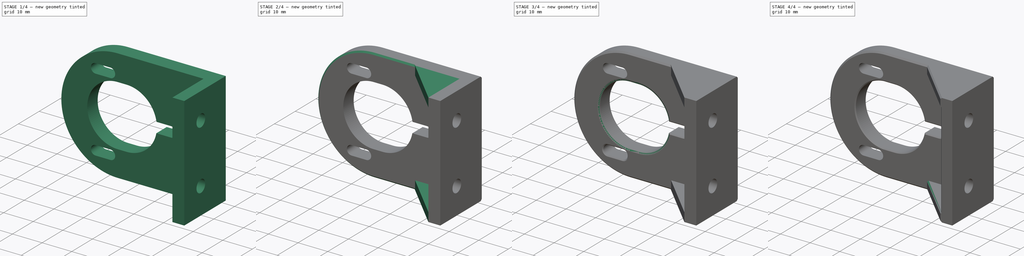
[diagram: build sequence overview — one tinted view per stage of 4, left to right]
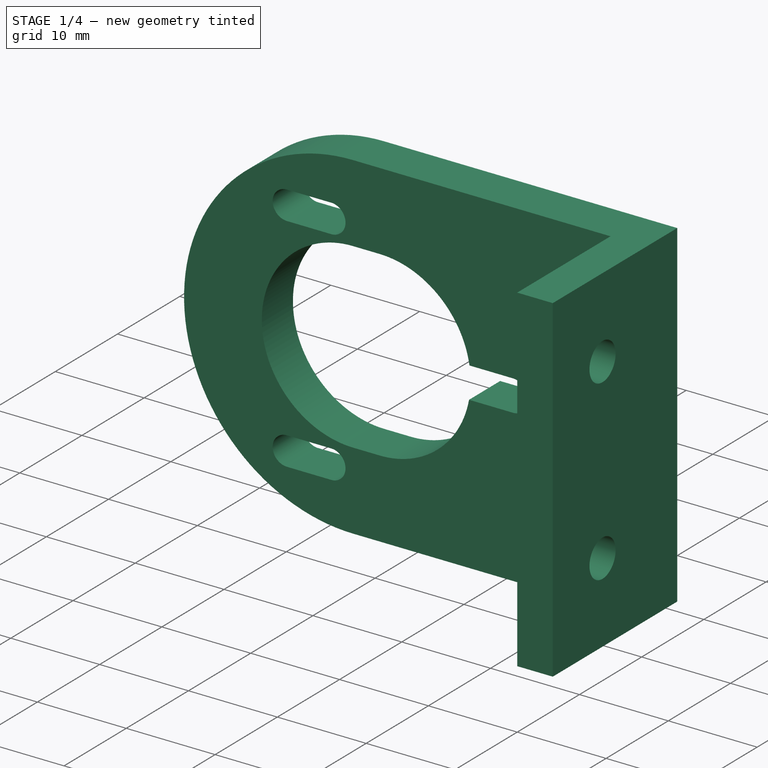
[diagram: stage 1 of 4 — iso view after this stage's code; geometry added in this stage tinted green]
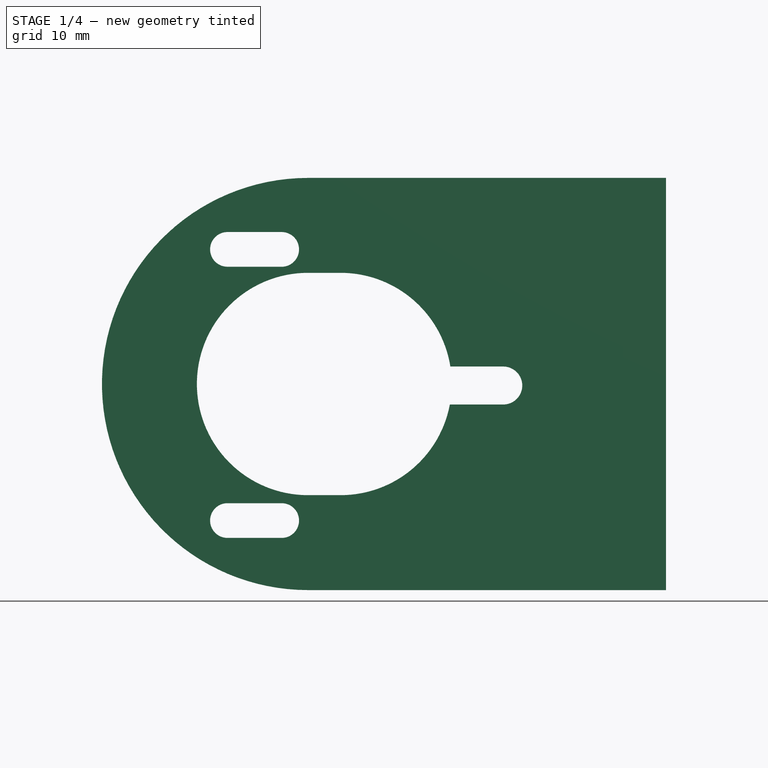
[diagram: stage 1 of 4 — front view after this stage's code; geometry added in this stage tinted green]
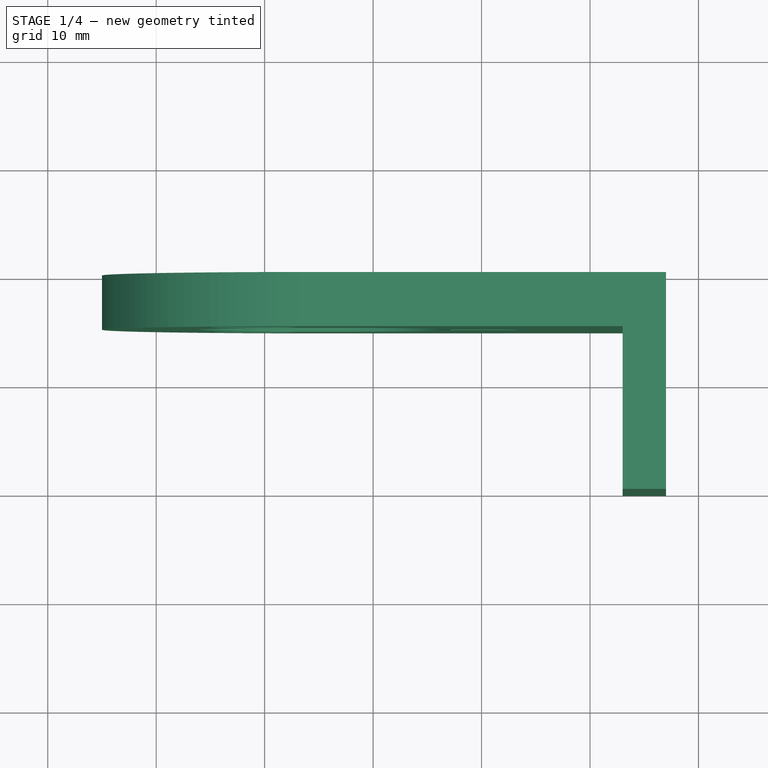
[diagram: stage 1 of 4 — top view after this stage's code; geometry added in this stage tinted green]
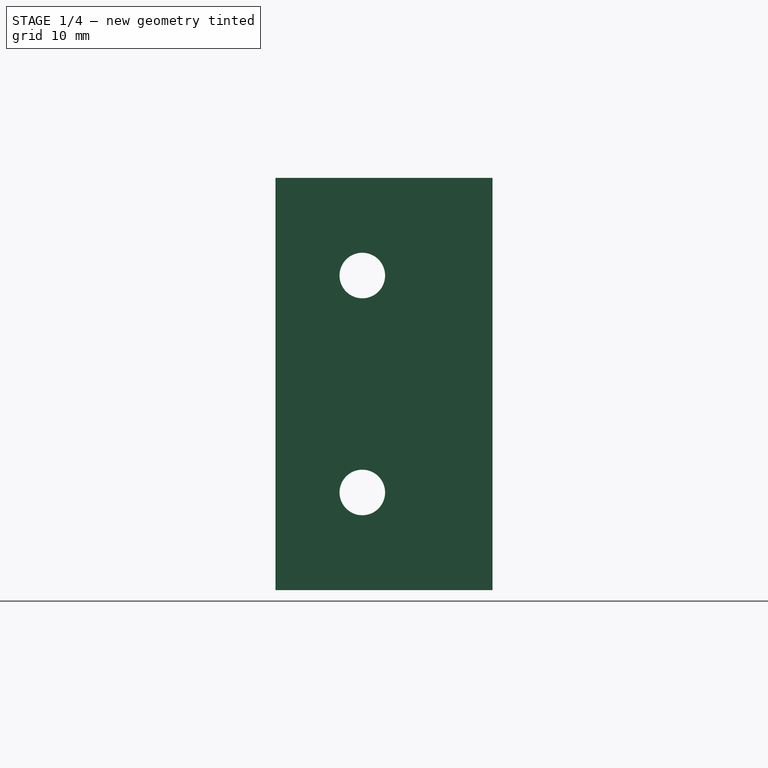
[diagram: stage 1 of 4 — right view after this stage's code; geometry added in this stage tinted green]
FCSTD DOCUMENT  (FreeCAD 0.21R33668 +26 (Git))
Label: Roll_Encoder_Mount
License: All rights reserved
LicenseURL: http://en.wikipedia.org/wiki/All_rights_reserved
objects: PartDesign::Chamfer×6, Sketcher::SketchObject×5, PartDesign::Pad×4, PartDesign::Pocket×1, PartDesign::Body×1
note: 28 computed .brp shape members not serialized (recipe doc carries the construction recipe); baked Part::Feature solids carry a one-line shape summary decoded from their .brp

FEATURE [Sketcher::SketchObject] Sketch124
  AttachmentOffset = pos=(1,-14,-75) rot=(0,0,1;0rad)
  FullyConstrained = true
  MapMode = 5
  Placement = pos=(1,75,-14) rot=(1,0,0;1.5708rad)
  Support = -> [XZ_Plane043]
  sketch-geometry (23):
    g0: LineSegment StartX=33 StartY=31 StartZ=0 EndX=66 EndY=31 EndZ=0
    g1: LineSegment StartX=66 StartY=31 StartZ=0 EndX=66 EndY=-7 EndZ=0
    g2: LineSegment StartX=66 StartY=-7 StartZ=0 EndX=33 EndY=-7 EndZ=0
    g3: ArcOfCircle CenterX=33 CenterY=12 CenterZ=0 NormalX=0 NormalY=0 NormalZ=1 AngleXU=0 Radius=19 StartAngle=1.5708 EndAngle=4.71239
    g4: LineSegment StartX=33 StartY=22.25 StartZ=0 EndX=36 EndY=22.25 EndZ=0
    g5: LineSegment StartX=36 StartY=1.75 StartZ=0 EndX=33 EndY=1.75 EndZ=0
    g6: ArcOfCircle CenterX=51 CenterY=11.86 CenterZ=0 NormalX=0 NormalY=0 NormalZ=1 AngleXU=0 Radius=1.75 StartAngle=4.71239 EndAngle=7.85398
    g7: LineSegment StartX=51 StartY=10.11 StartZ=0 EndX=46.0742 EndY=10.11 EndZ=0
    g8: LineSegment StartX=51 StartY=13.61 StartZ=0 EndX=46.1228 EndY=13.61 EndZ=0
    g9: ArcOfCircle CenterX=33 CenterY=12 CenterZ=0 NormalX=0 NormalY=0 NormalZ=1 AngleXU=0 Radius=10.25 StartAngle=1.5708 EndAngle=4.71239
    g10: ArcOfCircle CenterX=36 CenterY=12 CenterZ=0 NormalX=0 NormalY=0 NormalZ=1 AngleXU=0 Radius=10.25 StartAngle=4.71239 EndAngle=6.09773
    g11: ArcOfCircle CenterX=36 CenterY=12 CenterZ=0 NormalX=0 NormalY=0 NormalZ=1 AngleXU=0 Radius=10.25 StartAngle=0.157726 EndAngle=1.5708
    g12: ArcOfCircle CenterX=25.57 CenterY=24.41 CenterZ=0 NormalX=0 NormalY=0 NormalZ=1 AngleXU=0 Radius=1.6 StartAngle=1.5708 EndAngle=4.71239
    g13: ArcOfCircle CenterX=30.57 CenterY=24.41 CenterZ=0 NormalX=0 NormalY=0 NormalZ=1 AngleXU=0 Radius=1.6 StartAngle=4.71239 EndAngle=7.85398
    g14: ArcOfCircle CenterX=25.57 CenterY=-0.59 CenterZ=0 NormalX=0 NormalY=0 NormalZ=1 AngleXU=0 Radius=1.6 StartAngle=1.5708 EndAngle=4.71239
    g15: ArcOfCircle CenterX=30.57 CenterY=-0.59 CenterZ=0 NormalX=0 NormalY=0 NormalZ=1 AngleXU=0 Radius=1.6 StartAngle=4.71239 EndAngle=7.85398
    g16: LineSegment StartX=25.57 StartY=1.01 StartZ=0 EndX=30.57 EndY=1.01 EndZ=0
    g17: LineSegment StartX=25.57 StartY=-2.19 StartZ=0 EndX=30.57 EndY=-2.19 EndZ=0
    g18: LineSegment StartX=25.57 StartY=26.01 StartZ=0 EndX=30.57 EndY=26.01 EndZ=0
    g19: LineSegment StartX=25.57 StartY=22.81 StartZ=0 EndX=30.57 EndY=22.81 EndZ=0
    g20: GeomPoint X=33 Y=12 Z=0
    g21: GeomPoint X=33 Y=12 Z=0
    g22: GeomPoint X=33 Y=12 Z=0
  constraints (65):
    c: Coincident(g0,g1)
    c: Vertical(g1)
    c: Coincident(g1,g2)
    c: Coincident(g3,g2)
    c: Coincident(g3,g0)
    c: Horizontal(g2)
    c: Horizontal(g0)
    c: DistanceY(g1,g1) = 38
    c: DistanceX(g0) = 66
    c: Horizontal(g4)
    c: Horizontal(g5)
    c: DistanceY(g3) = 12
    c: Vertical(g5,g4)
    c: DistanceX(g3) = 33
    c: Vertical(g0,g3)
    c: Equal(g0,g2)
    c: Diameter(g6) = 3.5
    c: DistanceX(g6,g0) = 15
    c: DistanceY(g6,g0) = 19.14
    c: Horizontal(g7)
    c: Horizontal(g8)
    c: Tangent(g6,g7) = 1.5708
    c: Tangent(g6,g8) = -1.5708
    c: Coincident(g9,g3)
    c: Coincident(g9,g5)
    c: Coincident(g11,g4)
    c: Coincident(g10,g5)
    c: Symmetric(g4,g5,g10)
    c: Coincident(g10,g7)
    c: Coincident(g11,g8)
    c: DistanceX(g3,g10) = 3
    c: Coincident(g10,g11)
    c: Diameter(g9) = 20.5
    c: Coincident(g9,g4)
    c: Vertical(g4,g5)
    c: DistanceX(g12) = 25.57
    c: Horizontal(g12,g13)
    c: Horizontal(g14,g15)
    c: Vertical(g12,g14)
    c: Equal(g12,g13)
    c: Diameter(g12) = 3.2
    c: Equal(g14,g15)
    c: Diameter(g14) = 3.2
    c: DistanceX(g12,g13) = 5
    c: Vertical(g13,g15)
    c: DistanceY(g14,g12) = 25
    c: Tangent(g15,g16) = 1.5708
    c: Tangent(g15,g17) = -1.5708
    c: Coincident(g14,g17)
    c: Coincident(g14,g16)
    c: Vertical(g14,g14)
    c: Coincident(g13,g18)
    c: Coincident(g13,g19)
    c: Coincident(g12,g19)
    c: Coincident(g12,g18)
    c: Vertical(g12,g12)
    c: Vertical(g13,g13)
    c: Coincident(g20,g3)
    c: Coincident(g21,g3)
    c: Coincident(g22,g3)
    c: DistanceY(g12) = 24.41
    c: Vertical(g4,g3)
    c: Vertical(g13,g13)
    c: Vertical(g12,g12)
    c: Vertical(g14,g14)
FEATURE [PartDesign::Pad] Pad068
  Direction = (0,-1,-2e-16)
  Length = 5
  Length2 = 10
  Placement = pos=(0,0,0) rot=(1,0,0;1.5708rad)
  Profile = -> Sketch124
  ReferenceAxis = -> Sketch124 [N_Axis]
  Reversed = true
  Type = 0
FEATURE [Sketcher::SketchObject] Sketch125
  AttachmentOffset = pos=(0,0,67) rot=(0,0,1;0rad)
  FullyConstrained = true
  MapMode = 5
  Placement = pos=(67,-1.49e-14,1.49e-14) rot=(0.57735,0.57735,0.57735;2.0944rad)
  Support = -> [YZ_Plane042]
  sketch-geometry (4):
    g0: LineSegment StartX=80 StartY=17 StartZ=0 EndX=60 EndY=17 EndZ=0
    g1: LineSegment StartX=60 StartY=17 StartZ=0 EndX=60 EndY=-21 EndZ=0
    g2: LineSegment StartX=60 StartY=-21 StartZ=0 EndX=80 EndY=-21 EndZ=0
    g3: LineSegment StartX=80 StartY=-21 StartZ=0 EndX=80 EndY=17 EndZ=0
  constraints (12):
    c: Coincident(g0,g1)
    c: Coincident(g1,g2)
    c: Coincident(g2,g3)
    c: Coincident(g3,g0)
    c: Horizontal(g0)
    c: Horizontal(g2)
    c: Vertical(g1)
    c: Vertical(g3)
    c: DistanceX(g0) = 80
    c: Distance(g3) = 38
    c: DistanceY(g0) = 17
    c: Distance(g0) = 20
FEATURE [PartDesign::Pad] Pad069
  BaseFeature = -> Pad068
  Direction = (1,-2e-16,3e-16)
  Length = 4
  Length2 = 10
  Placement = pos=(0,0,0) rot=(1,0,0;1.5708rad)
  Profile = -> Sketch125
  ReferenceAxis = -> Sketch125 [N_Axis]
  Reversed = true
  Type = 0
FEATURE [Sketcher::SketchObject] Sketch
  AttachmentOffset = pos=(0,0,67) rot=(0,0,1;0rad)
  FullyConstrained = true
  MapMode = 5
  Placement = pos=(67,-1.49e-14,1.49e-14) rot=(0.57735,0.57735,0.57735;2.0944rad)
  Support = -> [YZ_Plane042]
  sketch-geometry (2):
    g0: Circle CenterX=68 CenterY=8 CenterZ=0 NormalX=0 NormalY=0 NormalZ=1 AngleXU=0 Radius=2.1
    g1: Circle CenterX=68 CenterY=-12 CenterZ=0 NormalX=0 NormalY=0 NormalZ=1 AngleXU=0 Radius=2.1
  constraints (6):
    c: Equal(g0,g1)
    c: Diameter(g0) = 4.2
    c: Vertical(g1,g0)
    c: Distance(g1,g0) = 20
    c: DistanceY(g0) = 8
    c: DistanceX(g0) = 68
FEATURE [PartDesign::Pocket] Pocket
  BaseFeature = -> Pad069
  Direction = (-1,2e-16,-3e-16)
  Length = 5
  Length2 = 5
  Placement = pos=(0,0,0) rot=(1,0,0;1.5708rad)
  Profile = -> Sketch
  ReferenceAxis = -> Sketch [N_Axis]
  Type = 1
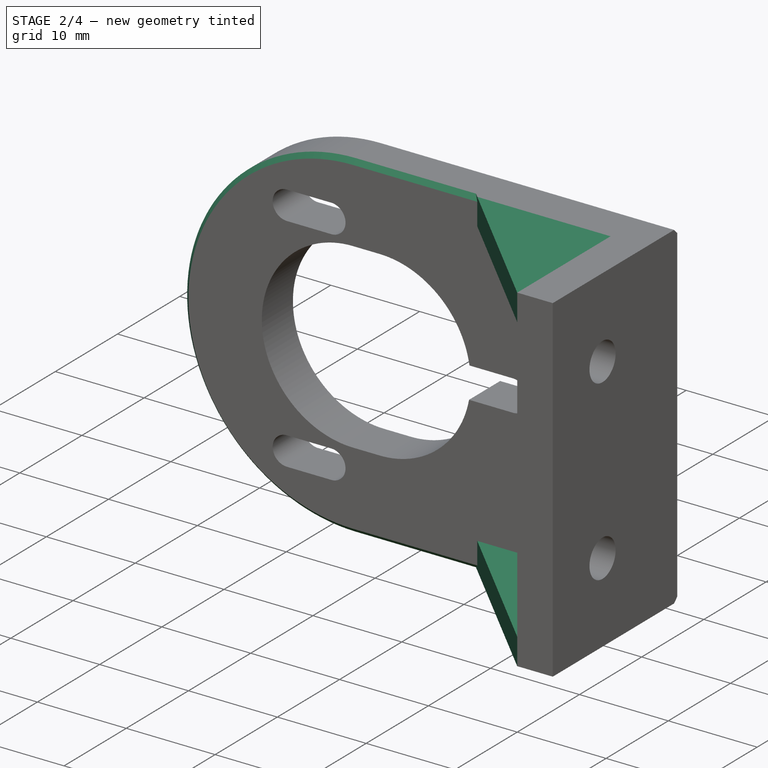
[diagram: stage 2 of 4 — iso view after this stage's code; geometry added in this stage tinted green]
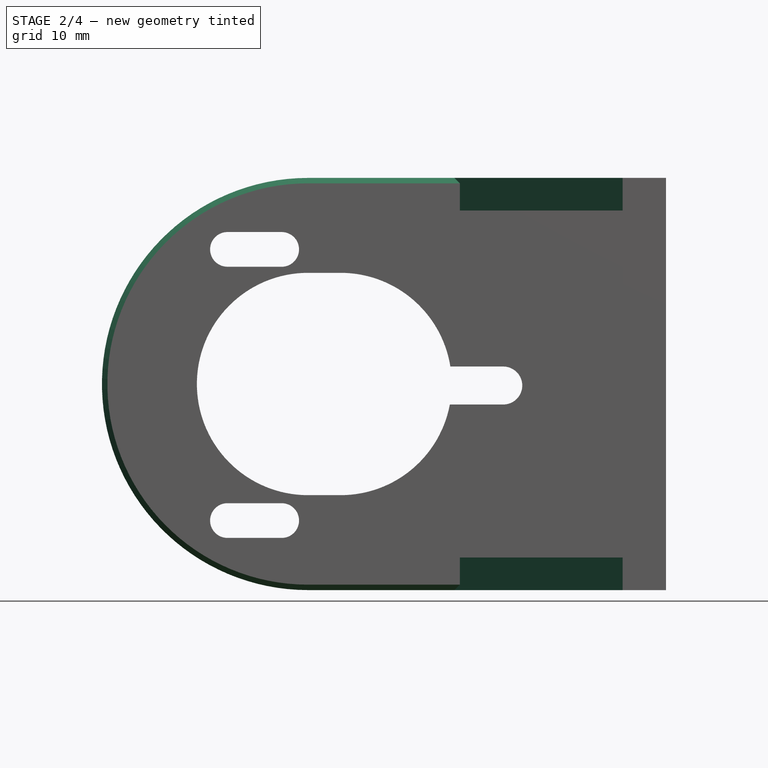
[diagram: stage 2 of 4 — front view after this stage's code; geometry added in this stage tinted green]
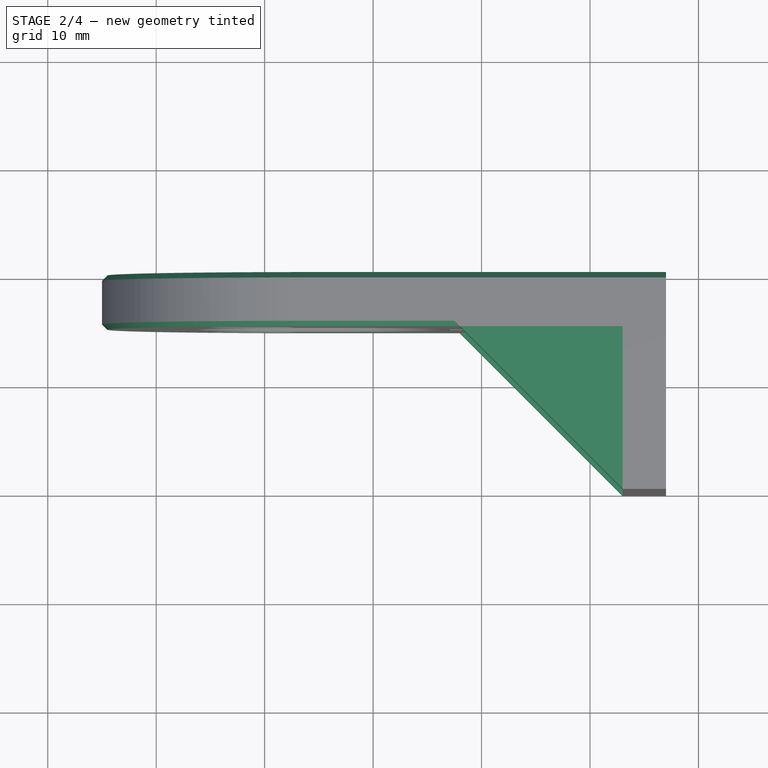
[diagram: stage 2 of 4 — top view after this stage's code; geometry added in this stage tinted green]
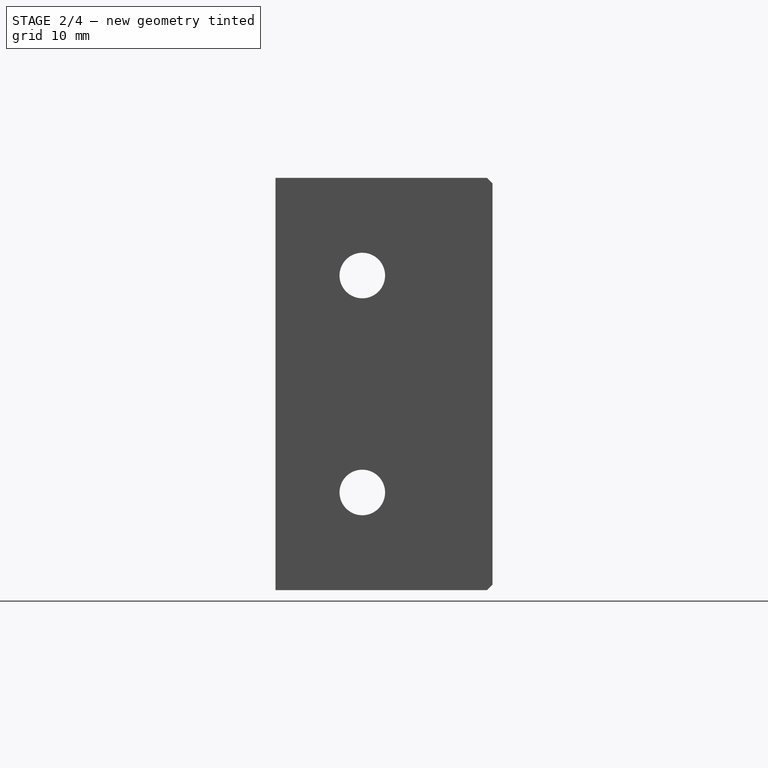
[diagram: stage 2 of 4 — right view after this stage's code; geometry added in this stage tinted green]
FEATURE [Sketcher::SketchObject] Sketch126
  AttachmentOffset = pos=(0,0,-21) rot=(0,0,1;0rad)
  FullyConstrained = true
  MapMode = 5
  Placement = pos=(0,0,-21) rot=(0,0,1;0rad)
  Support = -> [XY_Plane042]
  sketch-geometry (3):
    g0: LineSegment StartX=63 StartY=60 StartZ=0 EndX=63 EndY=75 EndZ=0
    g1: LineSegment StartX=63 StartY=75 StartZ=0 EndX=48 EndY=75 EndZ=0
    g2: LineSegment StartX=48 StartY=75 StartZ=0 EndX=63 EndY=60 EndZ=0
  constraints (9):
    c: Vertical(g0)
    c: Coincident(g0,g1)
    c: Horizontal(g1)
    c: Coincident(g1,g2)
    c: Coincident(g2,g0)
    c: Equal(g1,g0)
    c: Distance(g0) = 15
    c: DistanceY(g0) = 75
    c: DistanceX(g0) = 63
FEATURE [PartDesign::Pad] Pad
  BaseFeature = -> Pocket
  Direction = (0,0,1)
  Length = 3
  Length2 = 10
  Placement = pos=(0,0,0) rot=(1,0,0;1.5708rad)
  Profile = -> Sketch126
  ReferenceAxis = -> Sketch126 [N_Axis]
  Type = 0
FEATURE [Sketcher::SketchObject] Sketch127
  AttachmentOffset = pos=(0,0,17) rot=(0,0,1;0rad)
  FullyConstrained = true
  MapMode = 5
  Placement = pos=(0,0,17) rot=(0,0,1;0rad)
  Support = -> [XY_Plane042]
  sketch-geometry (3):
    g0: LineSegment StartX=63 StartY=60 StartZ=0 EndX=63 EndY=75 EndZ=0
    g1: LineSegment StartX=63 StartY=75 StartZ=0 EndX=48 EndY=75 EndZ=0
    g2: LineSegment StartX=48 StartY=75 StartZ=0 EndX=63 EndY=60 EndZ=0
  constraints (9):
    c: Vertical(g0)
    c: Coincident(g0,g1)
    c: Horizontal(g1)
    c: Coincident(g1,g2)
    c: Coincident(g2,g0)
    c: Equal(g1,g0)
    c: Distance(g0) = 15
    c: DistanceY(g0) = 75
    c: DistanceX(g0) = 63
FEATURE [PartDesign::Pad] Pad070
  BaseFeature = -> Pad
  Direction = (0,0,1)
  Length = 3
  Length2 = 10
  Placement = pos=(0,0,0) rot=(1,0,0;1.5708rad)
  Profile = -> Sketch127
  ReferenceAxis = -> Sketch127 [N_Axis]
  Reversed = true
  Type = 0
FEATURE [PartDesign::Chamfer] Chamfer
  Angle = 45
  Base = -> Pad070 [Face6]
  BaseFeature = -> Pad070
  ChamferType = 0
  FlipDirection = false
  Placement = pos=(0,0,0) rot=(1,0,0;1.5708rad)
  Size = 0.5
  Size2 = 1
  SupportTransform = false
  UseAllEdges = false
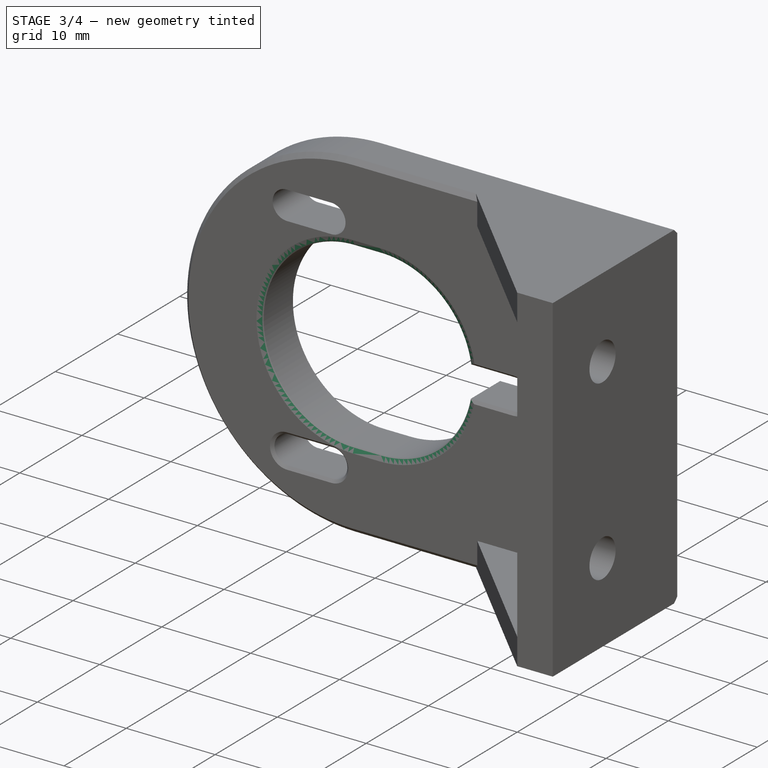
[diagram: stage 3 of 4 — iso view after this stage's code; geometry added in this stage tinted green]
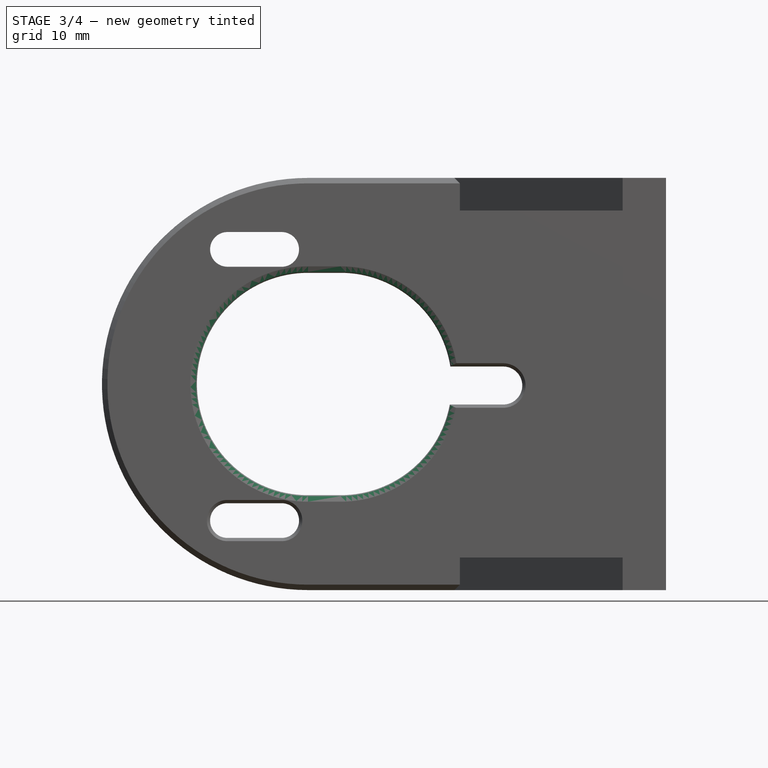
[diagram: stage 3 of 4 — front view after this stage's code; geometry added in this stage tinted green]
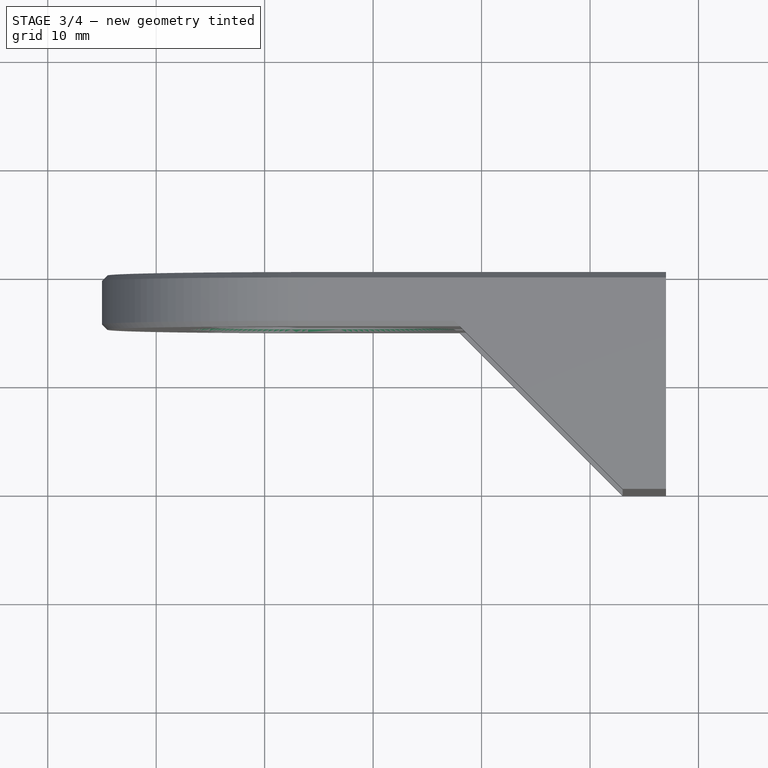
[diagram: stage 3 of 4 — top view after this stage's code; geometry added in this stage tinted green]
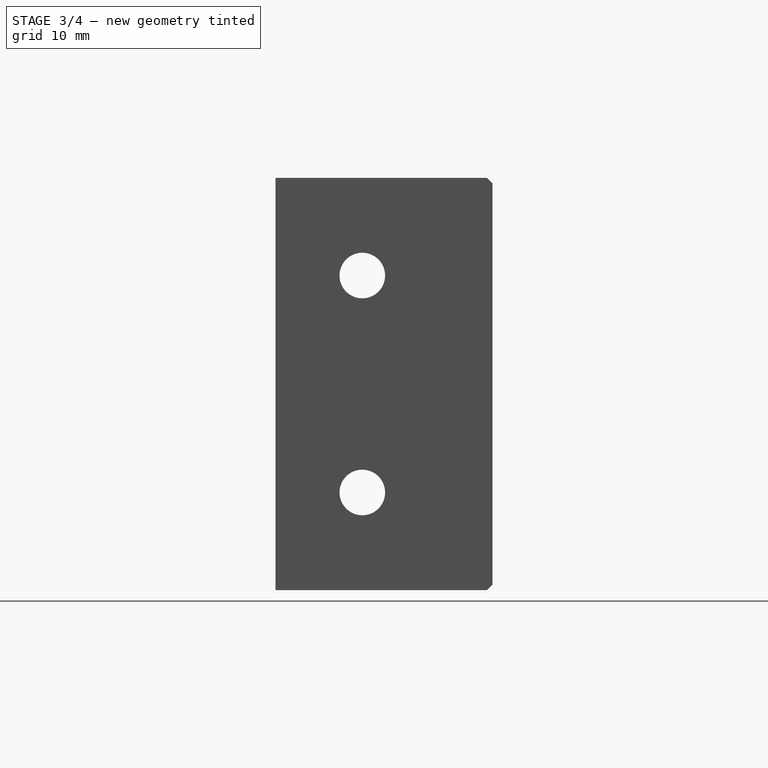
[diagram: stage 3 of 4 — right view after this stage's code; geometry added in this stage tinted green]
FEATURE [PartDesign::Chamfer] Chamfer001
  Angle = 45
  Base = -> Chamfer [Edge73,Edge72,Edge79,Edge78,Edge77]
  BaseFeature = -> Chamfer
  ChamferType = 0
  FlipDirection = false
  Placement = pos=(0,0,0) rot=(1,0,0;1.5708rad)
  Size = 0.3
  Size2 = 1
  SupportTransform = false
  UseAllEdges = false
FEATURE [PartDesign::Chamfer] Chamfer002
  Angle = 45
  Base = -> Chamfer001 [Edge5,Edge3,Edge1]
  BaseFeature = -> Chamfer001
  ChamferType = 0
  FlipDirection = false
  Placement = pos=(0,0,0) rot=(1,0,0;1.5708rad)
  Size = 0.3
  Size2 = 1
  SupportTransform = false
  UseAllEdges = false
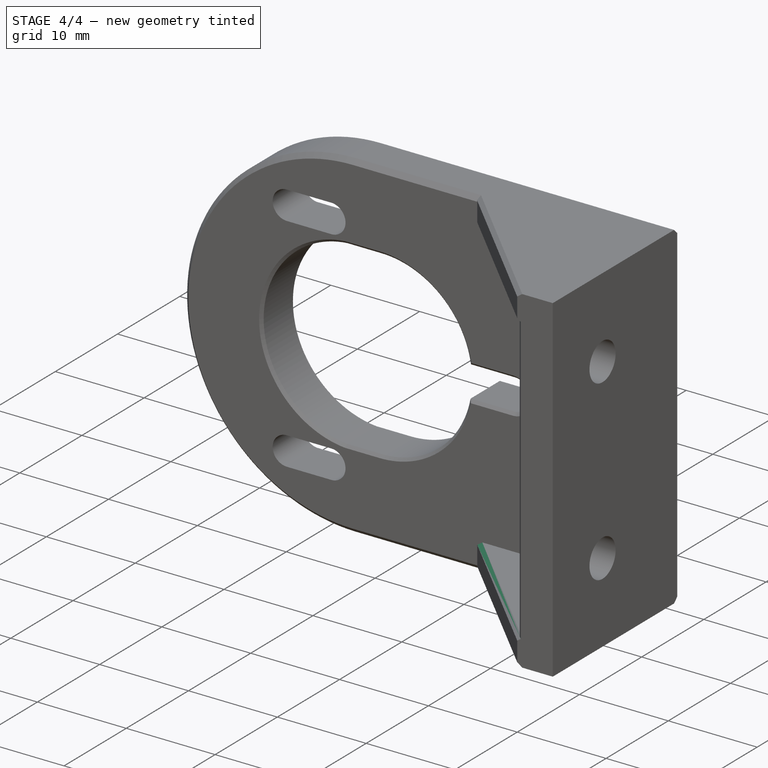
[diagram: stage 4 of 4 — iso view after this stage's code; geometry added in this stage tinted green]
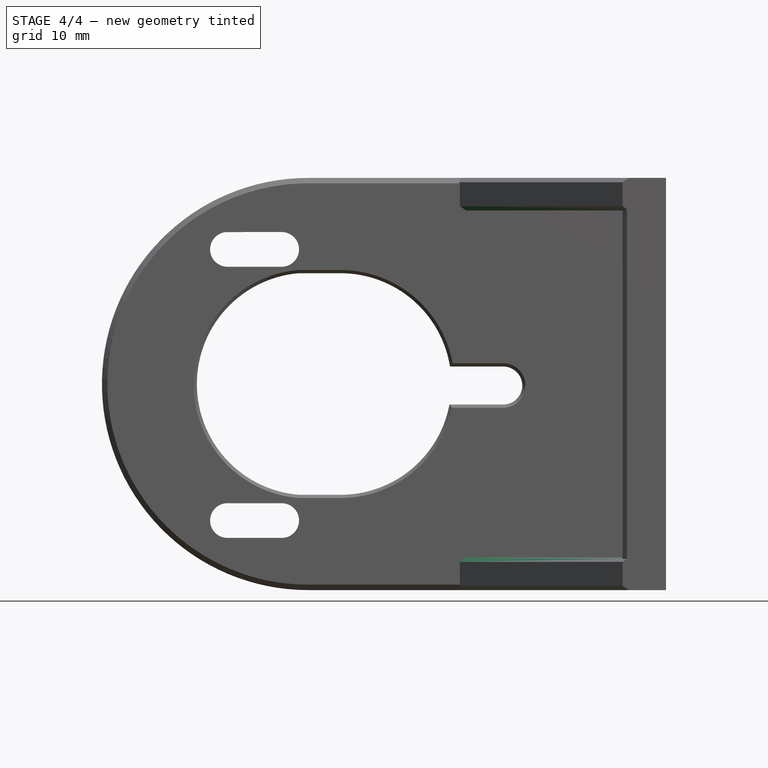
[diagram: stage 4 of 4 — front view after this stage's code; geometry added in this stage tinted green]
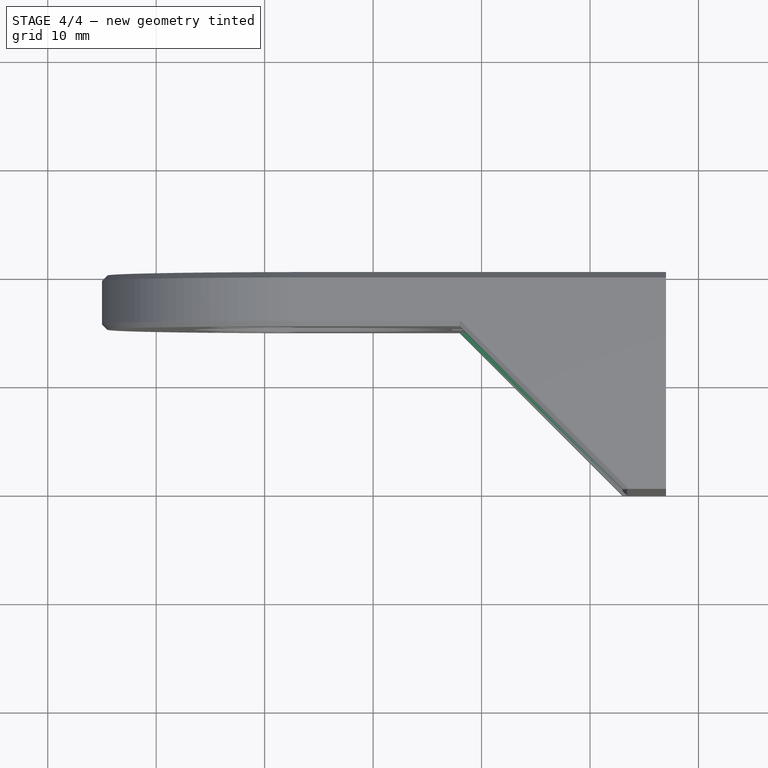
[diagram: stage 4 of 4 — top view after this stage's code; geometry added in this stage tinted green]
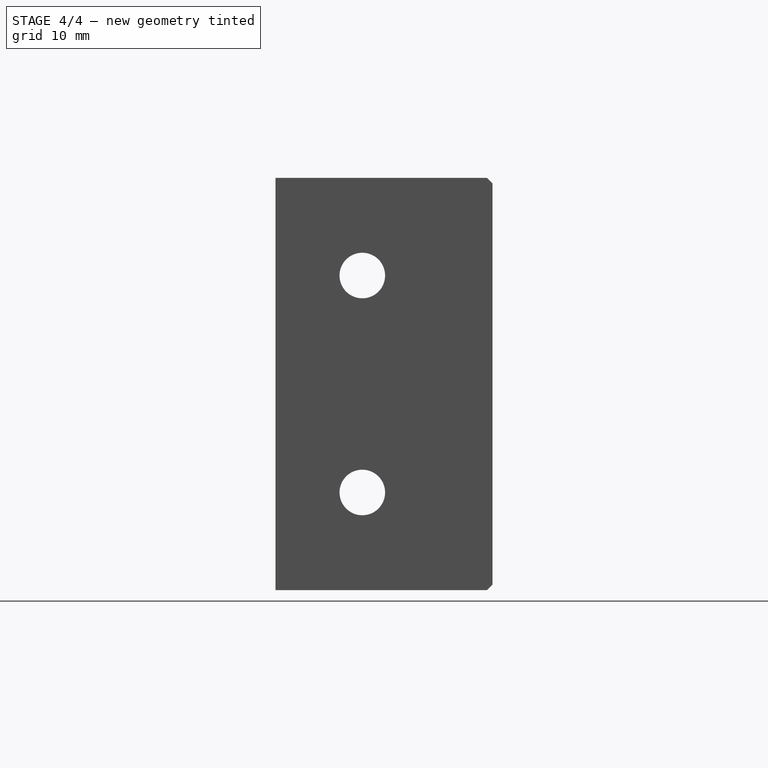
[diagram: stage 4 of 4 — right view after this stage's code; geometry added in this stage tinted green]
FEATURE [PartDesign::Chamfer] Chamfer003
  Angle = 45
  Base = -> Chamfer002 [Edge54,Edge52]
  BaseFeature = -> Chamfer002
  ChamferType = 0
  FlipDirection = false
  Placement = pos=(0,0,0) rot=(1,0,0;1.5708rad)
  Size = 0.4
  Size2 = 1
  SupportTransform = false
  UseAllEdges = false
FEATURE [PartDesign::Chamfer] Chamfer004
  Angle = 45
  Base = -> Chamfer003 [Edge48,Edge50]
  BaseFeature = -> Chamfer003
  ChamferType = 0
  FlipDirection = false
  Placement = pos=(0,0,0) rot=(1,0,0;1.5708rad)
  Size = 0.4
  Size2 = 1
  SupportTransform = false
  UseAllEdges = false
FEATURE [PartDesign::Chamfer] Chamfer005
  Angle = 45
  Base = -> Chamfer004 [Edge33]
  BaseFeature = -> Chamfer004
  ChamferType = 0
  FlipDirection = false
  Placement = pos=(0,0,0) rot=(1,0,0;1.5708rad)
  Size = 0.4
  Size2 = 1
  SupportTransform = false
  UseAllEdges = false
FEATURE [PartDesign::Body] Body026  label="Roll Encoder Mount"
  Group = -> [Sketch124,Pad068,Sketch125,Pad069,Sketch,Pocket,Sketch126,Pad,Sketch127,Pad070,Chamfer,Chamfer001,Chamfer002,Chamfer003,Chamfer004,Chamfer005]
  Origin = -> Origin042
  Placement = pos=(0,2,0) rot=(0,0,1;0rad)
  Tip = -> Chamfer005
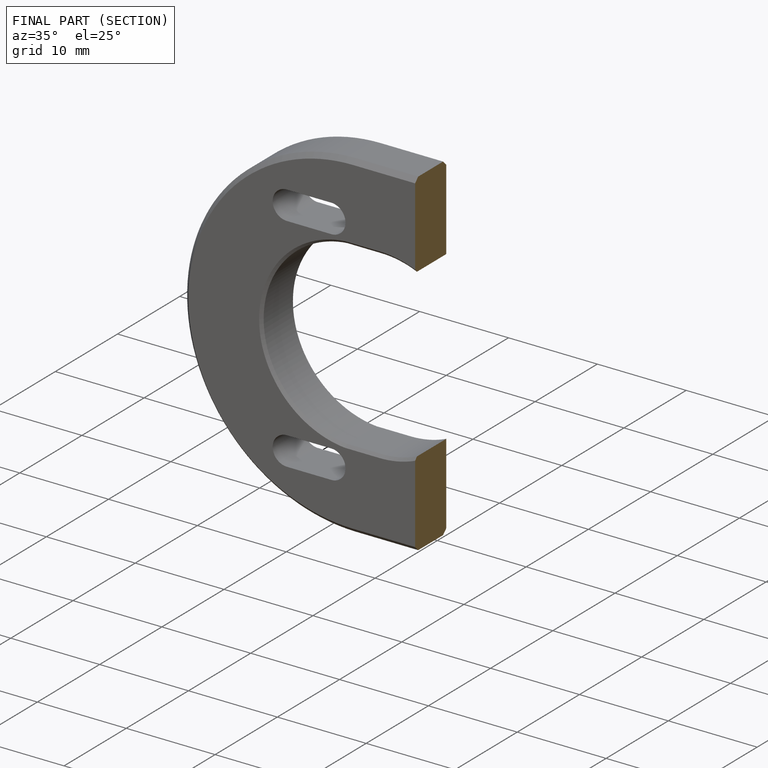
[diagram: finished part — half-section view (interior)]
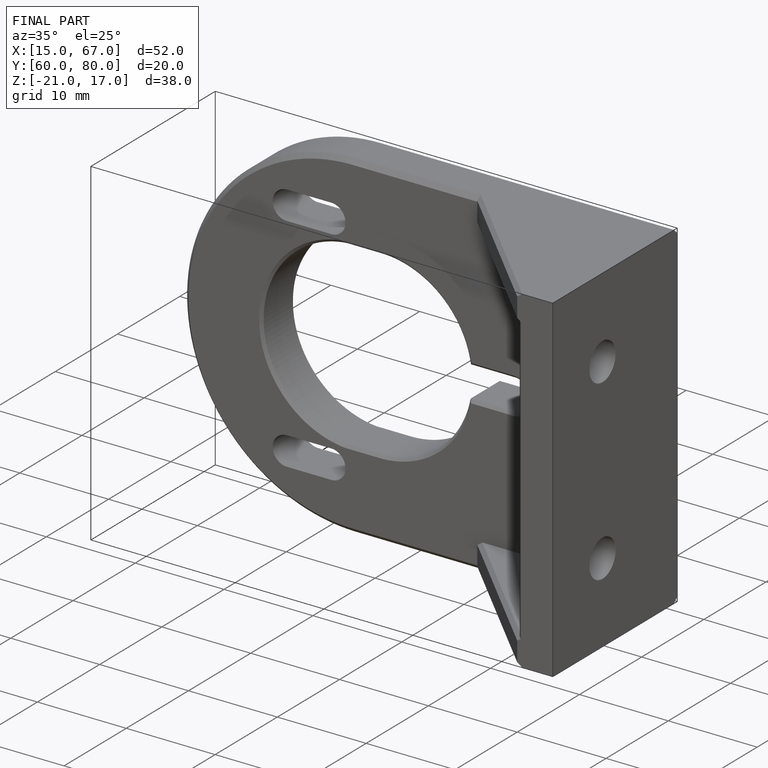
[diagram: finished part — iso view with bounding-box wireframe]
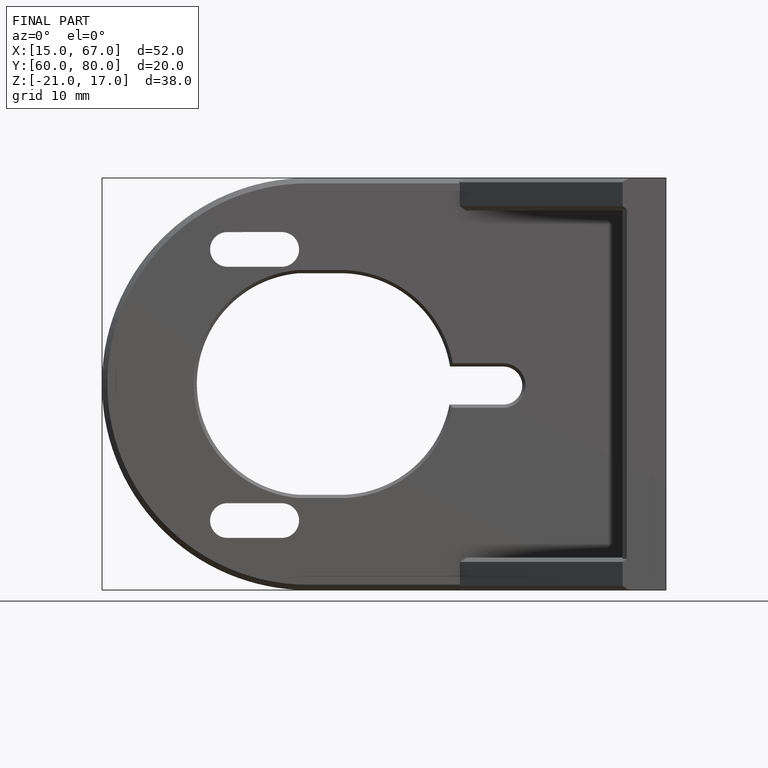
[diagram: finished part — front view with bounding-box wireframe]
